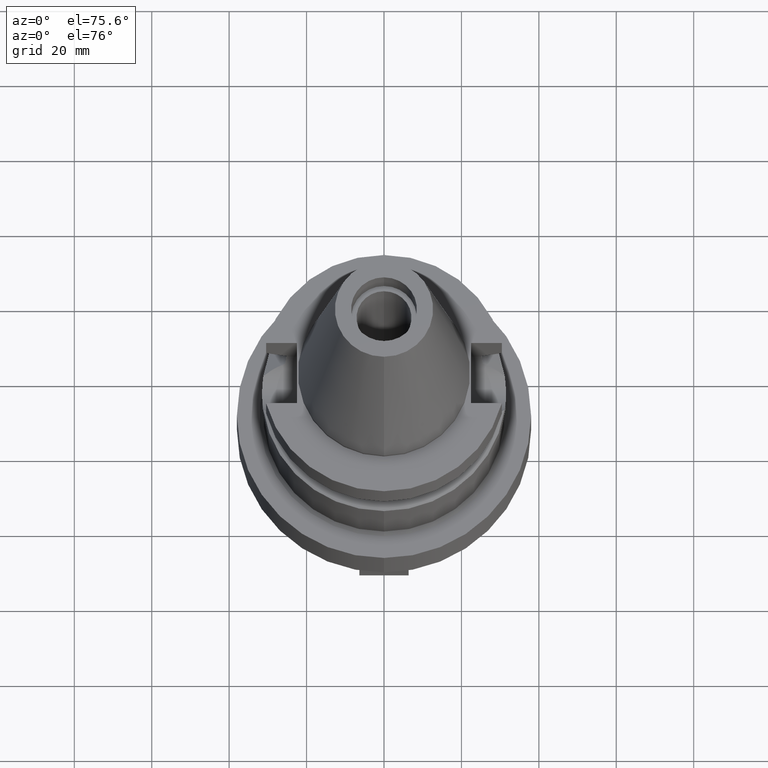
[diagram: clean part render]
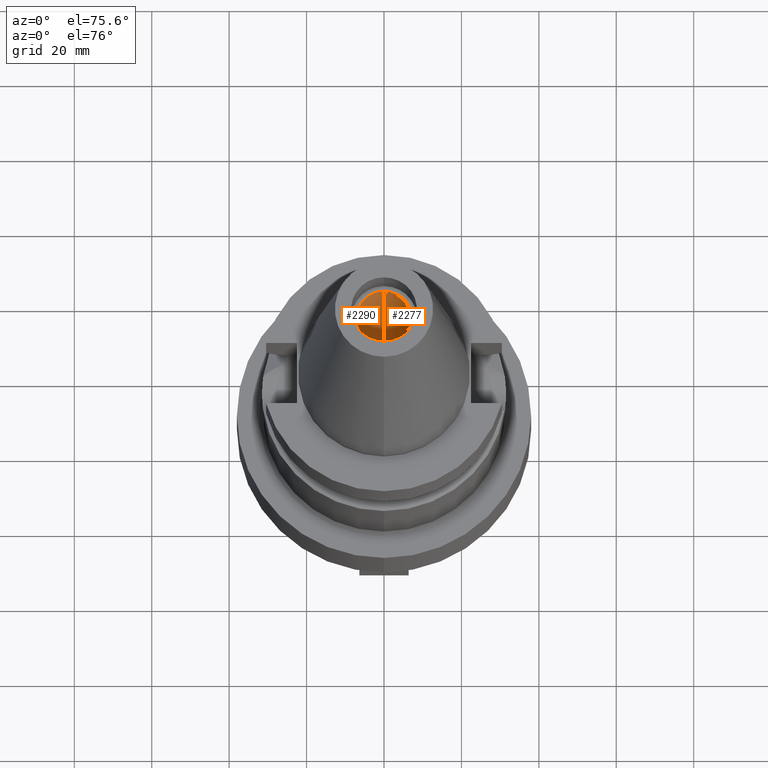
[diagram: same view with one multi-face feature highlighted, each face labeled with its STEP entity id]
A machine part, auxiliary view. The highlighted faces form ONE feature: a constant-radius fillet chain: 2 tangent blend faces with common blend radius 7.1 mm. The faces share edges in the B-rep.
Their STEP definitions:
[1] entity #2277 (Cylinder):
#1047=DIRECTION('',(0.E0,0.E0,1.E0));
#1048=VECTOR('',#1047,5.64E1);
#1049=CARTESIAN_POINT('',(0.E0,7.1E0,-5.684341886081E-14));
#1050=LINE('',#1049,#1048);
#1054=CARTESIAN_POINT('',(0.E0,2.120720862083E-14,-5.684341886081E-14));
#1055=DIRECTION('',(0.E0,0.E0,1.E0));
#1056=DIRECTION('',(0.E0,-1.E0,0.E0));
#1057=AXIS2_PLACEMENT_3D('',#1054,#1055,#1056);
#1062=DIRECTION('',(0.E0,0.E0,1.E0));
#1063=VECTOR('',#1062,5.64E1);
#1064=CARTESIAN_POINT('',(0.E0,-7.1E0,-5.684341886081E-14));
#1065=LINE('',#1064,#1063);
#1085=CARTESIAN_POINT('',(0.E0,2.120720862083E-14,5.64E1));
#1086=DIRECTION('',(0.E0,0.E0,1.E0));
#1087=DIRECTION('',(0.E0,-1.E0,0.E0));
#1088=AXIS2_PLACEMENT_3D('',#1085,#1086,#1087);
#1267=CARTESIAN_POINT('',(0.E0,-7.1E0,5.64E1));
#1268=CARTESIAN_POINT('',(0.E0,7.1E0,5.64E1));
#1269=VERTEX_POINT('',#1267);
#1270=VERTEX_POINT('',#1268);
#1271=CARTESIAN_POINT('',(0.E0,7.1E0,-5.684341886081E-14));
#1272=VERTEX_POINT('',#1271);
#1273=CARTESIAN_POINT('',(0.E0,-7.1E0,-5.684341886081E-14));
#1274=VERTEX_POINT('',#1273);
#2263=CARTESIAN_POINT('',(0.E0,2.120720862083E-14,7.317E1));
#2264=DIRECTION('',(0.E0,0.E0,-1.E0));
#2265=DIRECTION('',(0.E0,-1.E0,0.E0));
#2266=AXIS2_PLACEMENT_3D('',#2263,#2264,#2265);
#2267=CYLINDRICAL_SURFACE('',#2266,7.1E0);
#2269=ORIENTED_EDGE('',*,*,#2268,.T.);
#2271=ORIENTED_EDGE('',*,*,#2270,.F.);
#2273=ORIENTED_EDGE('',*,*,#2272,.F.);
#2274=ORIENTED_EDGE('',*,*,#2256,.T.);
#2275=EDGE_LOOP('',(#2269,#2271,#2273,#2274));
#2276=FACE_OUTER_BOUND('',#2275,.F.);
#1058=CIRCLE('',#1057,7.1E0);
#1089=CIRCLE('',#1088,7.1E0);
#2256=EDGE_CURVE('',#1274,#1272,#1058,.T.);
#2268=EDGE_CURVE('',#1272,#1270,#1050,.T.);
#2270=EDGE_CURVE('',#1269,#1270,#1089,.T.);
#2272=EDGE_CURVE('',#1274,#1269,#1065,.T.);
#2277=ADVANCED_FACE('',(#2276),#2267,.F.);
[2] entity #2290 (Cylinder):
#1032=CARTESIAN_POINT('',(0.E0,2.120720862083E-14,-5.684341886081E-14));
#1033=DIRECTION('',(0.E0,0.E0,-1.E0));
#1034=DIRECTION('',(0.E0,-1.E0,0.E0));
#1035=AXIS2_PLACEMENT_3D('',#1032,#1033,#1034);
#1047=DIRECTION('',(0.E0,0.E0,1.E0));
#1048=VECTOR('',#1047,5.64E1);
#1049=CARTESIAN_POINT('',(0.E0,7.1E0,-5.684341886081E-14));
#1050=LINE('',#1049,#1048);
#1062=DIRECTION('',(0.E0,0.E0,1.E0));
#1063=VECTOR('',#1062,5.64E1);
#1064=CARTESIAN_POINT('',(0.E0,-7.1E0,-5.684341886081E-14));
#1065=LINE('',#1064,#1063);
#1093=CARTESIAN_POINT('',(0.E0,2.120720862083E-14,5.64E1));
#1094=DIRECTION('',(0.E0,0.E0,1.E0));
#1095=DIRECTION('',(0.E0,1.E0,0.E0));
#1096=AXIS2_PLACEMENT_3D('',#1093,#1094,#1095);
#1267=CARTESIAN_POINT('',(0.E0,-7.1E0,5.64E1));
#1268=CARTESIAN_POINT('',(0.E0,7.1E0,5.64E1));
#1269=VERTEX_POINT('',#1267);
#1270=VERTEX_POINT('',#1268);
#1271=CARTESIAN_POINT('',(0.E0,7.1E0,-5.684341886081E-14));
#1272=VERTEX_POINT('',#1271);
#1273=CARTESIAN_POINT('',(0.E0,-7.1E0,-5.684341886081E-14));
#1274=VERTEX_POINT('',#1273);
#2278=CARTESIAN_POINT('',(0.E0,2.120720862083E-14,7.317E1));
#2279=DIRECTION('',(0.E0,0.E0,-1.E0));
#2280=DIRECTION('',(0.E0,-1.E0,0.E0));
#2281=AXIS2_PLACEMENT_3D('',#2278,#2279,#2280);
#2282=CYLINDRICAL_SURFACE('',#2281,7.1E0);
#2283=ORIENTED_EDGE('',*,*,#2268,.F.);
#2284=ORIENTED_EDGE('',*,*,#2245,.F.);
#2285=ORIENTED_EDGE('',*,*,#2272,.T.);
#2287=ORIENTED_EDGE('',*,*,#2286,.F.);
#2288=EDGE_LOOP('',(#2283,#2284,#2285,#2287));
#2289=FACE_OUTER_BOUND('',#2288,.F.);
#1036=CIRCLE('',#1035,7.1E0);
#1097=CIRCLE('',#1096,7.1E0);
#2245=EDGE_CURVE('',#1274,#1272,#1036,.T.);
#2268=EDGE_CURVE('',#1272,#1270,#1050,.T.);
#2272=EDGE_CURVE('',#1274,#1269,#1065,.T.);
#2286=EDGE_CURVE('',#1270,#1269,#1097,.T.);
#2290=ADVANCED_FACE('',(#2289),#2282,.F.);